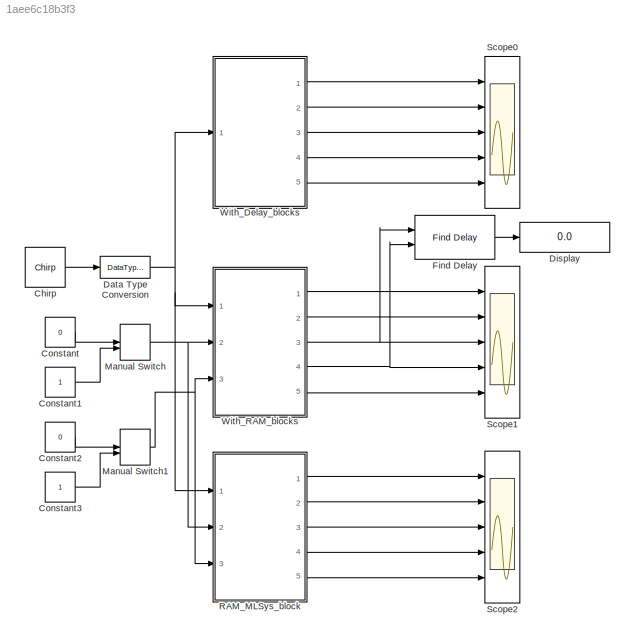
MODEL slx_1aee6c18b3f3
KIND model
CONFIG AbsTol = auto
CONFIG FixedStep = auto
CONFIG MaxStep = auto
CONFIG MinStep = auto
CONFIG RelTol = 1e-3
CONFIG SampleTimeConstraint = Unconstrained
CONFIG Solver = ode45
CONFIG SolverMode = SingleTasking
CONFIG SolverName = ode45
CONFIG StartTime = 0.0
CONFIG StopTime = 1000
BLOCK [Reference] Chirp  REF=dspsrcs4/Chirp
  Ports = [0, 1]
  SourceBlock = dspsrcs4/Chirp
  SourceType = Chirp
BLOCK [Constant] Constant
  OutDataTypeStr = boolean
  SampleTime = -1
  Value = 0
BLOCK [Constant] Constant1
  OutDataTypeStr = boolean
  SampleTime = -1
BLOCK [Constant] Constant2
  OutDataTypeStr = boolean
  SampleTime = -1
  Value = 0
BLOCK [Constant] Constant3
  OutDataTypeStr = boolean
  SampleTime = -1
BLOCK [DataTypeConversion] Data Type Conversion
  OutDataTypeStr = fixdt(1,16,12)
  RndMeth = Floor
  SaturateOnIntegerOverflow = off
BLOCK [Display] Display
  Decimation = 1
  Ports = [1]
BLOCK [Reference] Find Delay  REF=commutil2/Find Delay
  Ports = [2, 1]
  SourceBlock = commutil2/Find Delay
  SourceType = Find Delay
BLOCK [ManualSwitch] Manual Switch
BLOCK [ManualSwitch] Manual Switch1
  CurrentSetting = 0
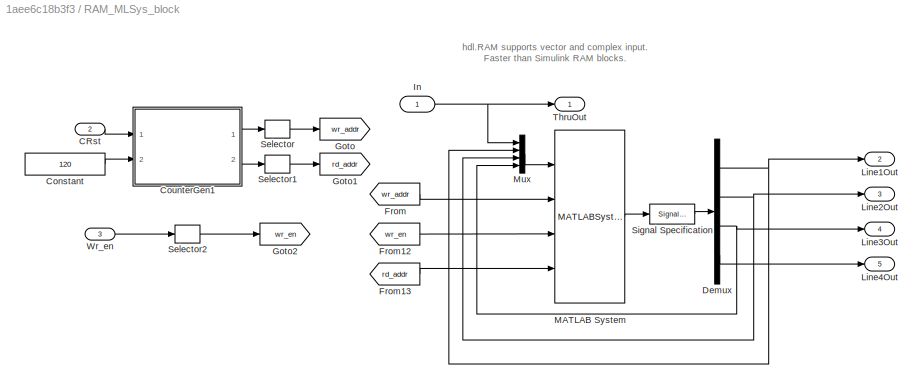
BLOCK [SubSystem] RAM_MLSys_block
  Ports = [3, 5]
  RequestExecContextInheritance = off
  Variant = off
BLOCK [Inport] RAM_MLSys_block/CRst
  IconDisplay = Port number
  Port = 2
BLOCK [Constant] RAM_MLSys_block/Constant
  OutDataTypeStr = fixdt(0, ceil(log2(120+1)),0)
  SampleTime = -1
  Value = 120
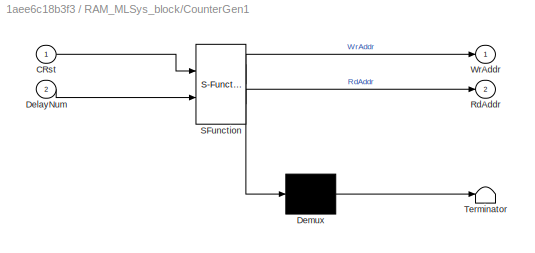
BLOCK [SubSystem] RAM_MLSys_block/CounterGen1
  ErrorFcn = Stateflow.Translate.translate
  PermitHierarchicalResolution = ExplicitOnly
  Ports = [2, 2]
  RequestExecContextInheritance = off
  SFBlockType = MATLAB Function
  TreatAsAtomicUnit = on
  Variant = off
BLOCK [Demux] RAM_MLSys_block/CounterGen1/ Demux 
  Outputs = 1
  Ports = [1, 1]
BLOCK [S-Function] RAM_MLSys_block/CounterGen1/ SFunction 
  EnableBusSupport = on
  FunctionName = sf_sfun
  PortCounts = [2 3]
  Ports = [2, 3]
  SFunctionDeploymentMode = off
  Tag = Stateflow S-Function slb_ram 2
BLOCK [Terminator] RAM_MLSys_block/CounterGen1/ Terminator 
BLOCK [Inport] RAM_MLSys_block/CounterGen1/CRst
  IconDisplay = Port number
BLOCK [Inport] RAM_MLSys_block/CounterGen1/DelayNum
  IconDisplay = Port number
  Port = 2
BLOCK [Outport] RAM_MLSys_block/CounterGen1/RdAddr
  IconDisplay = Port number
  Port = 2
BLOCK [Outport] RAM_MLSys_block/CounterGen1/WrAddr
  IconDisplay = Port number
BLOCK [Demux] RAM_MLSys_block/Demux
  DisplayOption = bar
  Ports = [1, 4]
BLOCK [From] RAM_MLSys_block/From
  GotoTag = wr_addr
BLOCK [From] RAM_MLSys_block/From12
  GotoTag = wr_en
BLOCK [From] RAM_MLSys_block/From13
  GotoTag = rd_addr
BLOCK [Goto] RAM_MLSys_block/Goto
  GotoTag = wr_addr
BLOCK [Goto] RAM_MLSys_block/Goto1
  GotoTag = rd_addr
BLOCK [Goto] RAM_MLSys_block/Goto2
  GotoTag = wr_en
BLOCK [Inport] RAM_MLSys_block/In
  IconDisplay = Port number
BLOCK [Outport] RAM_MLSys_block/Line1Out
  IconDisplay = Port number
  Port = 2
BLOCK [Outport] RAM_MLSys_block/Line2Out
  IconDisplay = Port number
  Port = 3
BLOCK [Outport] RAM_MLSys_block/Line3Out
  IconDisplay = Port number
  Port = 4
BLOCK [Outport] RAM_MLSys_block/Line4Out
  IconDisplay = Port number
  Port = 5
BLOCK [MATLABSystem] RAM_MLSys_block/MATLAB System
  MaskDisplay = disp('RAM');\nport_label('input',1,'din');\nport_label('input',2,'wr_addr');\nport_label('input',3,'wr_en');\nport_label('input',4,'rd_addr');\nport_label('output',1,'rd_dout');
  MaskType = hdl.RAM
  Ports = [4, 1]
  RAMType = Simple dual port
  SimulateUsing = Code generation
  System = hdl.RAM
  WriteOutputValue = New data
BLOCK [Mux] RAM_MLSys_block/Mux
  DisplayOption = bar
  Ports = [4, 1]
BLOCK [Selector] RAM_MLSys_block/Selector
  IndexOptions = Index vector (dialog)
  Indices = [1 1 1 1]
  InputPortWidth = 1
  OutputSizes = 1
  Ports = [1, 1]
BLOCK [Selector] RAM_MLSys_block/Selector1
  IndexOptions = Index vector (dialog)
  Indices = [1 1 1 1]
  InputPortWidth = 1
  OutputSizes = 1
  Ports = [1, 1]
BLOCK [Selector] RAM_MLSys_block/Selector2
  IndexOptions = Index vector (dialog)
  Indices = [1 1 1 1]
  InputPortWidth = 1
  OutputSizes = 1
  Ports = [1, 1]
BLOCK [SignalSpecification] RAM_MLSys_block/Signal Specification
  Dimensions = [4 1]
BLOCK [Outport] RAM_MLSys_block/ThruOut
  IconDisplay = Port number
BLOCK [Inport] RAM_MLSys_block/Wr_en
  IconDisplay = Port number
  Port = 3
BLOCK [Scope] Scope0
  NumInputPorts = 5
  Ports = [5]
  ScopeSpecificationString = C++SS(StrPVP('Location','[1288, 62, 1902, 555]'),StrPVP('Open','off'),StrPVP('ZoomMode','xonly'),MxPVP('AxesTitles',24,'struct(''axes1'',''%<SignalLabel>'',''axes2'',''%<SignalLabel>'',''axes3'',''%<SignalLabel>'',''axes4'',''%<SignalLabel>'',''axes5'',''%<SignalLabel>'')'),MxPVP('ScopeGraphics',28,'struct(''FigureColor'',''[0.5 0.5 0.5]'',''AxesColor'',''[0 0 0]'',''AxesTickColor'',''[1 1 1]'',''...<+441ch>
BLOCK [Scope] Scope1
  NumInputPorts = 5
  Ports = [5]
  ScopeSpecificationString = C++SS(StrPVP('Location','[1287, 529, 1901, 1023]'),StrPVP('Open','off'),StrPVP('ZoomMode','xonly'),MxPVP('AxesTitles',24,'struct(''axes1'',''%<SignalLabel>'',''axes2'',''%<SignalLabel>'',''axes3'',''%<SignalLabel>'',''axes4'',''%<SignalLabel>'',''axes5'',''%<SignalLabel>'')'),MxPVP('ScopeGraphics',28,'struct(''FigureColor'',''[0.5 0.5 0.5]'',''AxesColor'',''[0 0 0]'',''AxesTickColor'',''[1 1 1]'',...<+475ch>
BLOCK [Scope] Scope2
  NumInputPorts = 5
  Ports = [5]
  ScopeSpecificationString = Simulink.scopes.TimeScopeBlockCfg('CurrentConfiguration', extmgr.ConfigurationSet(extmgr.Configuration('Core','General UI',true),extmgr.Configuration('Core','Source UI',true),extmgr.Configuration('Sources','WiredSimulink',true,'DataLoggingVariableName','ScopeData2','DataLoggingSaveFormat','StructureWithTime','DataLoggingDecimation','1','DataLoggingDecimateData',true),extmgr.Configuration('Visuals'...<+6503ch>
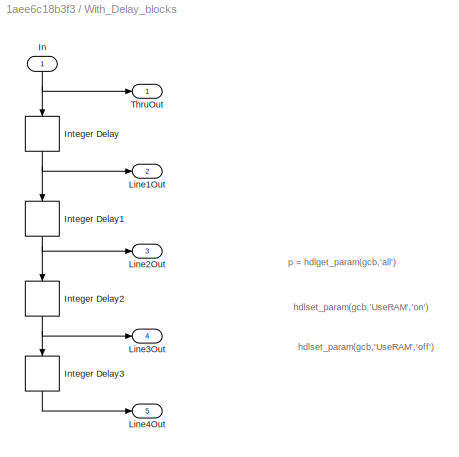
BLOCK [SubSystem] With_Delay_blocks
  Ports = [1, 5]
  RequestExecContextInheritance = off
  Variant = off
BLOCK [Inport] With_Delay_blocks/In
  IconDisplay = Port number
BLOCK [Delay] With_Delay_blocks/Integer Delay
  DelayLength = 120
  InputPortMap = u0
  Ports = [1, 1]
  UserDataPersistent = on
BLOCK [Delay] With_Delay_blocks/Integer Delay1
  DelayLength = 120
  InputPortMap = u0
  Ports = [1, 1]
  UserDataPersistent = on
BLOCK [Delay] With_Delay_blocks/Integer Delay2
  DelayLength = 120
  InputPortMap = u0
  Ports = [1, 1]
  UserDataPersistent = on
BLOCK [Delay] With_Delay_blocks/Integer Delay3
  DelayLength = 120
  InputPortMap = u0
  Ports = [1, 1]
  UserDataPersistent = on
BLOCK [Outport] With_Delay_blocks/Line1Out
  IconDisplay = Port number
  Port = 2
BLOCK [Outport] With_Delay_blocks/Line2Out
  IconDisplay = Port number
  Port = 3
BLOCK [Outport] With_Delay_blocks/Line3Out
  IconDisplay = Port number
  Port = 4
BLOCK [Outport] With_Delay_blocks/Line4Out
  IconDisplay = Port number
  Port = 5
BLOCK [Outport] With_Delay_blocks/ThruOut
  IconDisplay = Port number
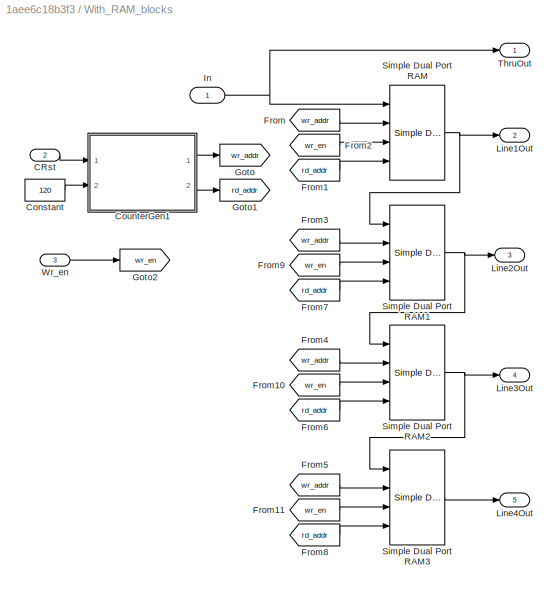
BLOCK [SubSystem] With_RAM_blocks
  Ports = [3, 5]
  RequestExecContextInheritance = off
  Variant = off
BLOCK [Inport] With_RAM_blocks/CRst
  IconDisplay = Port number
  Port = 2
BLOCK [Constant] With_RAM_blocks/Constant
  OutDataTypeStr = uint8
  Value = 120
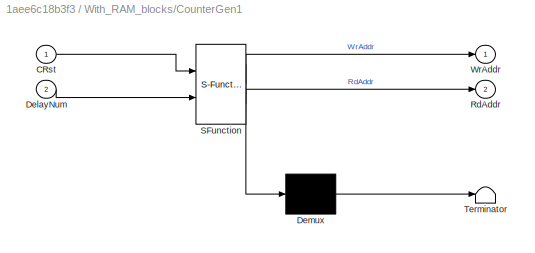
BLOCK [SubSystem] With_RAM_blocks/CounterGen1
  ErrorFcn = Stateflow.Translate.translate
  PermitHierarchicalResolution = ExplicitOnly
  Ports = [2, 2]
  RequestExecContextInheritance = off
  SFBlockType = MATLAB Function
  TreatAsAtomicUnit = on
  Variant = off
BLOCK [Demux] With_RAM_blocks/CounterGen1/ Demux 
  Outputs = 1
  Ports = [1, 1]
BLOCK [S-Function] With_RAM_blocks/CounterGen1/ SFunction 
  EnableBusSupport = on
  FunctionName = sf_sfun
  PortCounts = [2 3]
  Ports = [2, 3]
  SFunctionDeploymentMode = off
  Tag = Stateflow S-Function slb_ram 1
BLOCK [Terminator] With_RAM_blocks/CounterGen1/ Terminator 
BLOCK [Inport] With_RAM_blocks/CounterGen1/CRst
  IconDisplay = Port number
BLOCK [Inport] With_RAM_blocks/CounterGen1/DelayNum
  IconDisplay = Port number
  Port = 2
BLOCK [Outport] With_RAM_blocks/CounterGen1/RdAddr
  IconDisplay = Port number
  Port = 2
BLOCK [Outport] With_RAM_blocks/CounterGen1/WrAddr
  IconDisplay = Port number
BLOCK [From] With_RAM_blocks/From
  GotoTag = wr_addr
BLOCK [From] With_RAM_blocks/From1
  GotoTag = rd_addr
BLOCK [From] With_RAM_blocks/From10
  GotoTag = wr_en
BLOCK [From] With_RAM_blocks/From11
  GotoTag = wr_en
BLOCK [From] With_RAM_blocks/From2
  GotoTag = wr_en
BLOCK [From] With_RAM_blocks/From3
  GotoTag = wr_addr
BLOCK [From] With_RAM_blocks/From4
  GotoTag = wr_addr
BLOCK [From] With_RAM_blocks/From5
  GotoTag = wr_addr
BLOCK [From] With_RAM_blocks/From6
  GotoTag = rd_addr
BLOCK [From] With_RAM_blocks/From7
  GotoTag = rd_addr
BLOCK [From] With_RAM_blocks/From8
  GotoTag = rd_addr
BLOCK [From] With_RAM_blocks/From9
  GotoTag = wr_en
BLOCK [Goto] With_RAM_blocks/Goto
  GotoTag = wr_addr
BLOCK [Goto] With_RAM_blocks/Goto1
  GotoTag = rd_addr
BLOCK [Goto] With_RAM_blocks/Goto2
  GotoTag = wr_en
BLOCK [Inport] With_RAM_blocks/In
  IconDisplay = Port number
BLOCK [Outport] With_RAM_blocks/Line1Out
  IconDisplay = Port number
  Port = 2
BLOCK [Outport] With_RAM_blocks/Line2Out
  IconDisplay = Port number
  Port = 3
BLOCK [Outport] With_RAM_blocks/Line3Out
  IconDisplay = Port number
  Port = 4
BLOCK [Outport] With_RAM_blocks/Line4Out
  IconDisplay = Port number
  Port = 5
BLOCK [Reference] With_RAM_blocks/Simple Dual Port RAM  REF=hdlsllib/HDL Operations/Simple Dual Port RAM
  Ports = [4, 1]
  SourceBlock = hdlsllib/HDL Operations/Simple Dual Port RAM
  SourceType = Simple Dual-port RAM
BLOCK [Reference] With_RAM_blocks/Simple Dual Port RAM1  REF=hdlsllib/HDL Operations/Simple Dual Port RAM
  Ports = [4, 1]
  SourceBlock = hdlsllib/HDL Operations/Simple Dual Port RAM
  SourceType = Simple Dual-port RAM
BLOCK [Reference] With_RAM_blocks/Simple Dual Port RAM2  REF=hdlsllib/HDL Operations/Simple Dual Port RAM
  Ports = [4, 1]
  SourceBlock = hdlsllib/HDL Operations/Simple Dual Port RAM
  SourceType = Simple Dual-port RAM
BLOCK [Reference] With_RAM_blocks/Simple Dual Port RAM3  REF=hdlsllib/HDL Operations/Simple Dual Port RAM
  Ports = [4, 1]
  SourceBlock = hdlsllib/HDL Operations/Simple Dual Port RAM
  SourceType = Simple Dual-port RAM
BLOCK [Outport] With_RAM_blocks/ThruOut
  IconDisplay = Port number
BLOCK [Inport] With_RAM_blocks/Wr_en
  IconDisplay = Port number
  Port = 3
ANNOTATION RAM_MLSys_block: hdl.RAM supports vector and complex input. Faster than Simulink RAM blocks.
ANNOTATION With_Delay_blocks: hdlset_param(gcb,'UseRAM','off')
ANNOTATION With_Delay_blocks: hdlset_param(gcb,'UseRAM','on')
ANNOTATION With_Delay_blocks: p = hdlget_param(gcb,'all')
LINE Chirp:1 -> Data Type Conversion:1
LINE Constant1:1 -> Manual Switch:2
LINE Constant2:1 -> Manual Switch1:1
LINE Constant3:1 -> Manual Switch1:2
LINE Constant:1 -> Manual Switch:1
NET Data Type Conversion:1 -> RAM_MLSys_block:1, With_Delay_blocks:1, With_RAM_blocks:1
LINE Find Delay:1 -> Display:1
NET Manual Switch1:1 -> RAM_MLSys_block:3, With_RAM_blocks:3
NET Manual Switch:1 -> RAM_MLSys_block:2, With_RAM_blocks:2
LINE RAM_MLSys_block/CRst:1 -> RAM_MLSys_block/CounterGen1:1
LINE RAM_MLSys_block/Constant:1 -> RAM_MLSys_block/CounterGen1:2
LINE RAM_MLSys_block/CounterGen1:1 -> RAM_MLSys_block/Selector:1
LINE RAM_MLSys_block/CounterGen1:2 -> RAM_MLSys_block/Selector1:1
NET RAM_MLSys_block/Demux:1 -> RAM_MLSys_block/Line1Out:1, RAM_MLSys_block/Mux:2
NET RAM_MLSys_block/Demux:2 -> RAM_MLSys_block/Line2Out:1, RAM_MLSys_block/Mux:3
NET RAM_MLSys_block/Demux:3 -> RAM_MLSys_block/Line3Out:1, RAM_MLSys_block/Mux:4
LINE RAM_MLSys_block/Demux:4 -> RAM_MLSys_block/Line4Out:1
LINE RAM_MLSys_block/From12:1 -> RAM_MLSys_block/MATLAB System:3
LINE RAM_MLSys_block/From13:1 -> RAM_MLSys_block/MATLAB System:4
LINE RAM_MLSys_block/From:1 -> RAM_MLSys_block/MATLAB System:2
NET RAM_MLSys_block/In:1 -> RAM_MLSys_block/Mux:1, RAM_MLSys_block/ThruOut:1
LINE RAM_MLSys_block/MATLAB System:1 -> RAM_MLSys_block/Signal Specification:1
LINE RAM_MLSys_block/Mux:1 -> RAM_MLSys_block/MATLAB System:1
LINE RAM_MLSys_block/Selector1:1 -> RAM_MLSys_block/Goto1:1
LINE RAM_MLSys_block/Selector2:1 -> RAM_MLSys_block/Goto2:1
LINE RAM_MLSys_block/Selector:1 -> RAM_MLSys_block/Goto:1
LINE RAM_MLSys_block/Signal Specification:1 -> RAM_MLSys_block/Demux:1
LINE RAM_MLSys_block/Wr_en:1 -> RAM_MLSys_block/Selector2:1
LINE RAM_MLSys_block:1 -> Scope2:1
LINE RAM_MLSys_block:2 -> Scope2:2
LINE RAM_MLSys_block:3 -> Scope2:3
LINE RAM_MLSys_block:4 -> Scope2:4
LINE RAM_MLSys_block:5 -> Scope2:5
NET With_Delay_blocks/In:1 -> With_Delay_blocks/Integer Delay:1, With_Delay_blocks/ThruOut:1
NET With_Delay_blocks/Integer Delay1:1 -> With_Delay_blocks/Integer Delay2:1, With_Delay_blocks/Line2Out:1
NET With_Delay_blocks/Integer Delay2:1 -> With_Delay_blocks/Integer Delay3:1, With_Delay_blocks/Line3Out:1
LINE With_Delay_blocks/Integer Delay3:1 -> With_Delay_blocks/Line4Out:1
NET With_Delay_blocks/Integer Delay:1 -> With_Delay_blocks/Integer Delay1:1, With_Delay_blocks/Line1Out:1
LINE With_Delay_blocks:1 -> Scope0:1
LINE With_Delay_blocks:2 -> Scope0:2
LINE With_Delay_blocks:3 -> Scope0:3
LINE With_Delay_blocks:4 -> Scope0:4
LINE With_Delay_blocks:5 -> Scope0:5
LINE With_RAM_blocks/CRst:1 -> With_RAM_blocks/CounterGen1:1
LINE With_RAM_blocks/Constant:1 -> With_RAM_blocks/CounterGen1:2
LINE With_RAM_blocks/CounterGen1:1 -> With_RAM_blocks/Goto:1
LINE With_RAM_blocks/CounterGen1:2 -> With_RAM_blocks/Goto1:1
LINE With_RAM_blocks/From10:1 -> With_RAM_blocks/Simple Dual Port RAM2:3
LINE With_RAM_blocks/From11:1 -> With_RAM_blocks/Simple Dual Port RAM3:3
LINE With_RAM_blocks/From1:1 -> With_RAM_blocks/Simple Dual Port RAM:4
LINE With_RAM_blocks/From2:1 -> With_RAM_blocks/Simple Dual Port RAM:3
LINE With_RAM_blocks/From3:1 -> With_RAM_blocks/Simple Dual Port RAM1:2
LINE With_RAM_blocks/From4:1 -> With_RAM_blocks/Simple Dual Port RAM2:2
LINE With_RAM_blocks/From5:1 -> With_RAM_blocks/Simple Dual Port RAM3:2
LINE With_RAM_blocks/From6:1 -> With_RAM_blocks/Simple Dual Port RAM2:4
LINE With_RAM_blocks/From7:1 -> With_RAM_blocks/Simple Dual Port RAM1:4
LINE With_RAM_blocks/From8:1 -> With_RAM_blocks/Simple Dual Port RAM3:4
LINE With_RAM_blocks/From9:1 -> With_RAM_blocks/Simple Dual Port RAM1:3
LINE With_RAM_blocks/From:1 -> With_RAM_blocks/Simple Dual Port RAM:2
NET With_RAM_blocks/In:1 -> With_RAM_blocks/Simple Dual Port RAM:1, With_RAM_blocks/ThruOut:1
NET With_RAM_blocks/Simple Dual Port RAM1:1 -> With_RAM_blocks/Line2Out:1, With_RAM_blocks/Simple Dual Port RAM2:1
NET With_RAM_blocks/Simple Dual Port RAM2:1 -> With_RAM_blocks/Line3Out:1, With_RAM_blocks/Simple Dual Port RAM3:1
LINE With_RAM_blocks/Simple Dual Port RAM3:1 -> With_RAM_blocks/Line4Out:1
NET With_RAM_blocks/Simple Dual Port RAM:1 -> With_RAM_blocks/Line1Out:1, With_RAM_blocks/Simple Dual Port RAM1:1
LINE With_RAM_blocks/Wr_en:1 -> With_RAM_blocks/Goto2:1
LINE With_RAM_blocks:1 -> Scope1:1
LINE With_RAM_blocks:2 -> Scope1:2
NET With_RAM_blocks:3 -> Find Delay:1, Scope1:3
NET With_RAM_blocks:4 -> Find Delay:2, Scope1:4
LINE With_RAM_blocks:5 -> Scope1:5
note: NET lines group one-source signal fan-out (src -> all destinations, sorted); 1:1 wires keep LINE
CHART With_RAM_blocks/CounterGen1 states=1 transitions=1
  STATE_LABEL 'eML_blk_kernel()'
  STATE_LABEL "SCRIPT:\nfunction [WrAddr,RdAddr] = counter(CRst, DelayNum)\n% This block supports the Embedded MATLAB subset.\n% See the help menu for details. \n\n% Parameters\n% DelayNum=120;\nUpperLim = DelayNum;\n\nType_nt = numerictype(0,8,0);\nType_fm = fimath('OverflowMode', 'wrap', 'RoundMode', 'floor');\n\npersistent CountTemp\n\nif isempty(CountTemp)\n\tCountTemp = fi(0,Type_nt, Type_fm);\nend\n\n% Output Count Down Sign...<+342ch>"
CHART RAM_MLSys_block/CounterGen1 states=1 transitions=1
  STATE_LABEL 'eML_blk_kernel()'
  STATE_LABEL "SCRIPT:\nfunction [WrAddr,RdAddr] = counter(CRst, DelayNum)\n% This block supports the Embedded MATLAB subset.\n% See the help menu for details. \n\n% Parameters\n% DelayNum=120;\nUpperLim = DelayNum;\n\nType_nt = numerictype(0,8,0);\nType_fm = fimath('OverflowMode', 'wrap', 'RoundMode', 'floor');\n\npersistent CountTemp\n\nif isempty(CountTemp)\n\tCountTemp = fi(0,Type_nt, Type_fm);\nend\n\n% Output Count Down Sign...<+342ch>"
